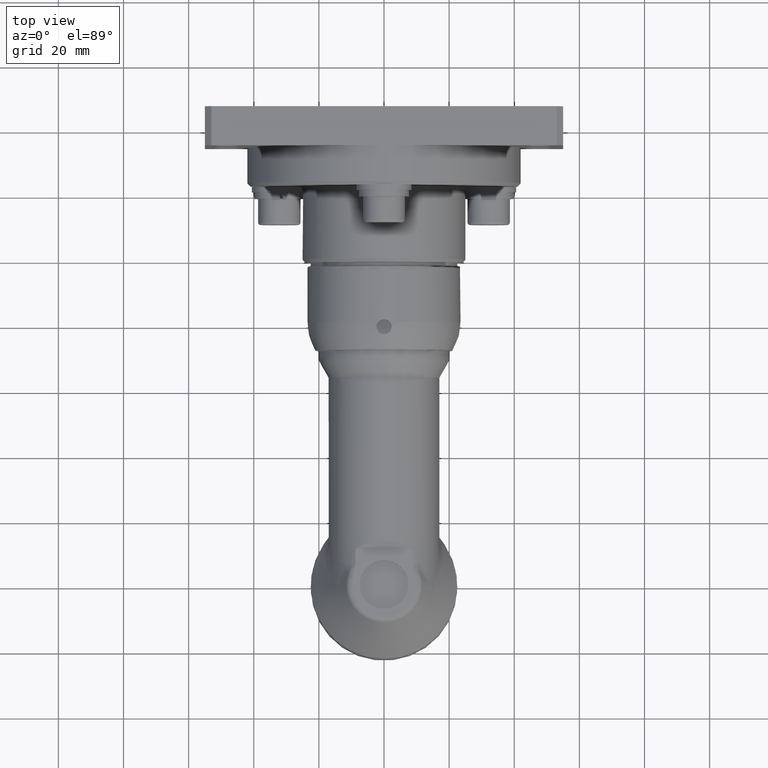
[diagram: clean part render]
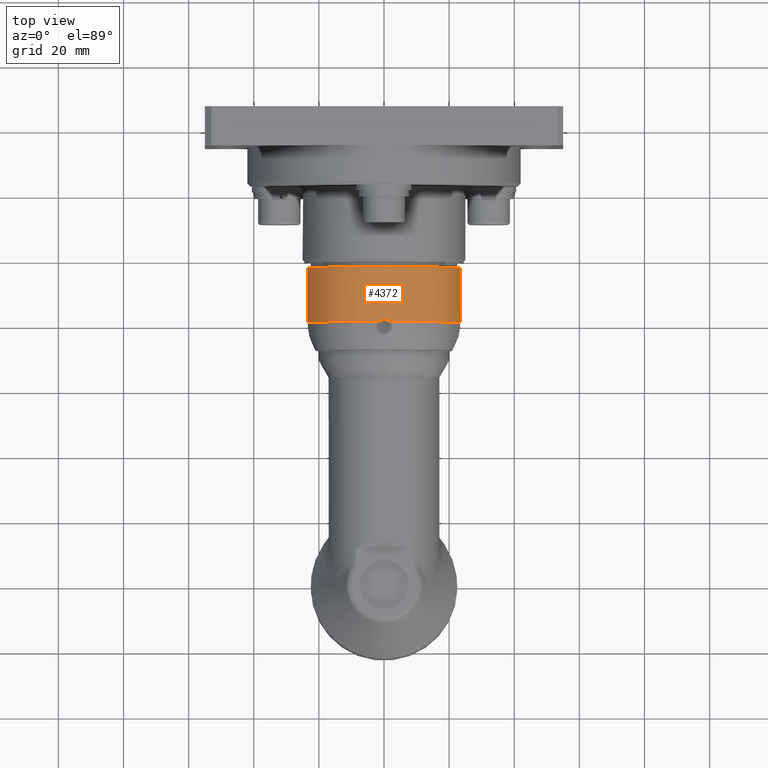
[diagram: same view with one face highlighted and labeled with its STEP entity id]
A machine part, top view. The second image highlights one B-rep face of the part: STEP entity #4372.
In plain terms, the highlighted cylindrical surface (bore or boss wall) has radius 23.5 mm, axis along (0, 1, -0).
Its self-contained STEP definition (entity closure, byte-faithful):
#75=B_SPLINE_CURVE_WITH_KNOTS('',3,(#6801,#6802,#6803,#6804,#6805,#6806),
 .UNSPECIFIED.,.F.,.F.,(4,2,4),(-0.346790081006187,-0.260092696087759,-0.182050218631956),
 .UNSPECIFIED.);
#76=B_SPLINE_CURVE_WITH_KNOTS('',3,(#6808,#6809,#6810,#6811,#6812,#6813),
 .UNSPECIFIED.,.F.,.F.,(4,2,4),(-0.511529943380419,-0.433487465924616,-0.346790081006187),
 .UNSPECIFIED.);
#79=B_SPLINE_CURVE_WITH_KNOTS('',3,(#6866,#6867,#6868,#6869,#6870,#6871),
 .UNSPECIFIED.,.F.,.F.,(4,2,4),(-0.346790081006187,-0.260092696087759,-0.182050218631957),
 .UNSPECIFIED.);
#80=B_SPLINE_CURVE_WITH_KNOTS('',3,(#6873,#6874,#6875,#6876,#6877,#6878),
 .UNSPECIFIED.,.F.,.F.,(4,2,4),(-0.511529943380418,-0.433487465924616,-0.346790081006187),
 .UNSPECIFIED.);
#84=B_SPLINE_CURVE_WITH_KNOTS('',3,(#6921,#6922,#6923,#6924,#6925,#6926),
 .UNSPECIFIED.,.F.,.F.,(4,2,4),(-0.346790081006187,-0.260092696087759,-0.182050218631957),
 .UNSPECIFIED.);
#85=B_SPLINE_CURVE_WITH_KNOTS('',3,(#6928,#6929,#6930,#6931,#6932,#6933),
 .UNSPECIFIED.,.F.,.F.,(4,2,4),(-0.511529943380418,-0.433487465924616,-0.346790081006187),
 .UNSPECIFIED.);
#88=B_SPLINE_CURVE_WITH_KNOTS('',3,(#6971,#6972,#6973,#6974,#6975,#6976),
 .UNSPECIFIED.,.F.,.F.,(4,2,4),(-0.346790081006188,-0.260092696087759,-0.182050218631957),
 .UNSPECIFIED.);
#89=B_SPLINE_CURVE_WITH_KNOTS('',3,(#6978,#6979,#6980,#6981,#6982,#6983),
 .UNSPECIFIED.,.F.,.F.,(4,2,4),(-0.511529943380418,-0.433487465924616,-0.346790081006188),
 .UNSPECIFIED.);
#182=LINE('',#7079,#395);
#395=VECTOR('',#5374,23.5);
#606=CYLINDRICAL_SURFACE('',#4682,23.5);
#756=FACE_OUTER_BOUND('',#1013,.T.);
#1013=EDGE_LOOP('',(#2940,#2941,#2942,#2943,#2944,#2945,#2946,#2947,#2948,
#2949,#2950,#2951,#2952,#2953,#2954,#2955,#2956));
#1322=CIRCLE('',#4664,23.5);
#1323=CIRCLE('',#4665,23.5);
#1324=CIRCLE('',#4666,23.5);
#1325=CIRCLE('',#4667,23.5);
#1336=CIRCLE('',#4683,23.5);
#1337=CIRCLE('',#4684,23.5);
#1338=CIRCLE('',#4685,23.5);
#1687=VERTEX_POINT('',#6790);
#1689=VERTEX_POINT('',#6800);
#1690=VERTEX_POINT('',#6807);
#1697=VERTEX_POINT('',#6855);
#1699=VERTEX_POINT('',#6865);
#1700=VERTEX_POINT('',#6872);
#1702=VERTEX_POINT('',#6910);
#1704=VERTEX_POINT('',#6920);
#1705=VERTEX_POINT('',#6927);
#1706=VERTEX_POINT('',#6960);
#1708=VERTEX_POINT('',#6970);
#1709=VERTEX_POINT('',#6977);
#1722=VERTEX_POINT('',#7074);
#1723=VERTEX_POINT('',#7075);
#1724=VERTEX_POINT('',#7077);
#2159=EDGE_CURVE('',#1689,#1687,#75,.T.);
#2160=EDGE_CURVE('',#1690,#1689,#76,.T.);
#2170=EDGE_CURVE('',#1699,#1697,#79,.T.);
#2171=EDGE_CURVE('',#1700,#1699,#80,.T.);
#2176=EDGE_CURVE('',#1704,#1702,#84,.T.);
#2177=EDGE_CURVE('',#1705,#1704,#85,.T.);
#2181=EDGE_CURVE('',#1708,#1706,#88,.T.);
#2182=EDGE_CURVE('',#1709,#1708,#89,.T.);
#2189=EDGE_CURVE('',#1700,#1687,#1322,.T.);
#2190=EDGE_CURVE('',#1690,#1702,#1323,.T.);
#2191=EDGE_CURVE('',#1705,#1706,#1324,.T.);
#2192=EDGE_CURVE('',#1709,#1697,#1325,.T.);
#2204=EDGE_CURVE('',#1722,#1723,#1336,.T.);
#2205=EDGE_CURVE('',#1724,#1722,#1337,.T.);
#2206=EDGE_CURVE('',#1724,#1708,#182,.T.);
#2207=EDGE_CURVE('',#1723,#1724,#1338,.T.);
#2940=ORIENTED_EDGE('',*,*,#2204,.F.);
#2941=ORIENTED_EDGE('',*,*,#2205,.F.);
#2942=ORIENTED_EDGE('',*,*,#2206,.T.);
#2943=ORIENTED_EDGE('',*,*,#2181,.T.);
#2944=ORIENTED_EDGE('',*,*,#2191,.F.);
#2945=ORIENTED_EDGE('',*,*,#2177,.T.);
#2946=ORIENTED_EDGE('',*,*,#2176,.T.);
#2947=ORIENTED_EDGE('',*,*,#2190,.F.);
#2948=ORIENTED_EDGE('',*,*,#2160,.T.);
#2949=ORIENTED_EDGE('',*,*,#2159,.T.);
#2950=ORIENTED_EDGE('',*,*,#2189,.F.);
#2951=ORIENTED_EDGE('',*,*,#2171,.T.);
#2952=ORIENTED_EDGE('',*,*,#2170,.T.);
#2953=ORIENTED_EDGE('',*,*,#2192,.F.);
#2954=ORIENTED_EDGE('',*,*,#2182,.T.);
#2955=ORIENTED_EDGE('',*,*,#2206,.F.);
#2956=ORIENTED_EDGE('',*,*,#2207,.F.);
#4372=ADVANCED_FACE('',(#756),#606,.T.);
#4664=AXIS2_PLACEMENT_3D('',#7045,#5331,#5332);
#4665=AXIS2_PLACEMENT_3D('',#7046,#5333,#5334);
#4666=AXIS2_PLACEMENT_3D('',#7047,#5335,#5336);
#4667=AXIS2_PLACEMENT_3D('',#7048,#5337,#5338);
#4682=AXIS2_PLACEMENT_3D('',#7073,#5368,#5369);
#4683=AXIS2_PLACEMENT_3D('',#7076,#5370,#5371);
#4684=AXIS2_PLACEMENT_3D('',#7078,#5372,#5373);
#4685=AXIS2_PLACEMENT_3D('',#7080,#5375,#5376);
#5331=DIRECTION('center_axis',(-3.24337863054652E-16,-1.,1.12588526286337E-18));
#5332=DIRECTION('ref_axis',(0.707106781186549,-2.35645247144205E-16,-0.707106781186546));
#5333=DIRECTION('center_axis',(-3.24337863054652E-16,-1.,1.12588526286337E-18));
#5334=DIRECTION('ref_axis',(0.707106781186549,-2.35645247144205E-16,-0.707106781186546));
#5335=DIRECTION('center_axis',(-3.24337863054652E-16,-1.,1.12588526286337E-18));
#5336=DIRECTION('ref_axis',(0.707106781186549,-2.35645247144205E-16,-0.707106781186546));
#5337=DIRECTION('center_axis',(-3.24337863054652E-16,-1.,1.12588526286337E-18));
#5338=DIRECTION('ref_axis',(0.707106781186549,-2.35645247144205E-16,-0.707106781186546));
#5368=DIRECTION('center_axis',(3.24337863054652E-16,1.,-1.12588526286337E-18));
#5369=DIRECTION('ref_axis',(1.96730036446087E-15,1.24710048735304E-16,-1.));
#5370=DIRECTION('center_axis',(3.24337863054652E-16,1.,-1.12588526286337E-18));
#5371=DIRECTION('ref_axis',(-2.02853270441824E-15,2.2569461021477E-18,1.));
#5372=DIRECTION('center_axis',(3.24337863054652E-16,1.,-1.12588526286337E-18));
#5373=DIRECTION('ref_axis',(-2.02853270441824E-15,2.2569461021477E-18,1.));
#5374=DIRECTION('',(-3.24337863054652E-16,-1.,1.12588526286337E-18));
#5375=DIRECTION('center_axis',(3.24337863054652E-16,1.,-1.12588526286337E-18));
#5376=DIRECTION('ref_axis',(-2.02853270441824E-15,2.2569461021477E-18,1.));
#6790=CARTESIAN_POINT('',(-1.5636771259462,80.6866872404905,-23.4479191794453));
#6800=CARTESIAN_POINT('',(3.58613428758053E-14,81.2999999999998,-23.5000000000002));
#6801=CARTESIAN_POINT('Ctrl Pts',(3.61516372393567E-14,81.2999999999998,
-23.5000000000002));
#6802=CARTESIAN_POINT('Ctrl Pts',(-0.288991283061391,81.2999999999998,-23.5000000000002));
#6803=CARTESIAN_POINT('Ctrl Pts',(-0.597119438070612,81.2422071708592,-23.4941232068967));
#6804=CARTESIAN_POINT('Ctrl Pts',(-1.13545525787972,81.0191449802078,-23.4739402612097));
#6805=CARTESIAN_POINT('Ctrl Pts',(-1.37072982928054,80.8655628887706,-23.4607863030463));
#6806=CARTESIAN_POINT('Ctrl Pts',(-1.56367712573367,80.6866872402601,-23.4479191794595));
#6807=CARTESIAN_POINT('',(1.56367712594627,80.6866872404905,-23.4479191794453));
#6808=CARTESIAN_POINT('Ctrl Pts',(1.56367712573373,80.6866872402602,-23.4479191794595));
#6809=CARTESIAN_POINT('Ctrl Pts',(1.3707298292806,80.8655628887706,-23.4607863030463));
#6810=CARTESIAN_POINT('Ctrl Pts',(1.13545525787979,81.0191449802078,-23.4739402612097));
#6811=CARTESIAN_POINT('Ctrl Pts',(0.597119438070684,81.2422071708592,-23.4941232068967));
#6812=CARTESIAN_POINT('Ctrl Pts',(0.288991283061464,81.2999999999998,-23.5000000000002));
#6813=CARTESIAN_POINT('Ctrl Pts',(3.61516372393567E-14,81.2999999999998,
-23.5000000000002));
#6855=CARTESIAN_POINT('',(-23.4479191794452,80.6866872404905,1.56367712594605));
#6865=CARTESIAN_POINT('',(-23.5,81.2999999999998,-1.87253343254214E-13));
#6866=CARTESIAN_POINT('Ctrl Pts',(-23.5,81.2999999999998,-1.85754189807597E-13));
#6867=CARTESIAN_POINT('Ctrl Pts',(-23.5,81.2999999999998,0.288991283061241));
#6868=CARTESIAN_POINT('Ctrl Pts',(-23.4941232068965,81.2422071708592,0.597119438070461));
#6869=CARTESIAN_POINT('Ctrl Pts',(-23.4739402612096,81.0191449802078,1.13545525787957));
#6870=CARTESIAN_POINT('Ctrl Pts',(-23.4607863030462,80.8655628887706,1.37072982928038));
#6871=CARTESIAN_POINT('Ctrl Pts',(-23.4479191794594,80.6866872402602,1.56367712573351));
#6872=CARTESIAN_POINT('',(-23.4479191794452,80.6866872404905,-1.56367712594642));
#6873=CARTESIAN_POINT('Ctrl Pts',(-23.4479191794594,80.6866872402602,-1.56367712573389));
#6874=CARTESIAN_POINT('Ctrl Pts',(-23.4607863030462,80.8655628887706,-1.37072982928076));
#6875=CARTESIAN_POINT('Ctrl Pts',(-23.4739402612095,81.0191449802078,-1.13545525787994));
#6876=CARTESIAN_POINT('Ctrl Pts',(-23.4941232068965,81.2422071708592,-0.597119438070834));
#6877=CARTESIAN_POINT('Ctrl Pts',(-23.5,81.2999999999998,-0.288991283061614));
#6878=CARTESIAN_POINT('Ctrl Pts',(-23.5,81.2999999999998,-1.86621551545585E-13));
#6910=CARTESIAN_POINT('',(23.4479191794452,80.6866872404904,-1.56367712594634));
#6920=CARTESIAN_POINT('',(23.5,81.2999999999998,-1.00546066080545E-13));
#6921=CARTESIAN_POINT('Ctrl Pts',(23.5,81.2999999999998,-9.90180160087561E-14));
#6922=CARTESIAN_POINT('Ctrl Pts',(23.5,81.2999999999998,-0.288991283061527));
#6923=CARTESIAN_POINT('Ctrl Pts',(23.4941232068965,81.2422071708592,-0.597119438070747));
#6924=CARTESIAN_POINT('Ctrl Pts',(23.4739402612095,81.0191449802078,-1.13545525787986));
#6925=CARTESIAN_POINT('Ctrl Pts',(23.4607863030462,80.8655628887706,-1.37072982928067));
#6926=CARTESIAN_POINT('Ctrl Pts',(23.4479191794593,80.6866872402601,-1.5636771257338));
#6927=CARTESIAN_POINT('',(23.4479191794452,80.6866872404904,1.56367712594614));
#6928=CARTESIAN_POINT('Ctrl Pts',(23.4479191794593,80.6866872402602,1.5636771257336));
#6929=CARTESIAN_POINT('Ctrl Pts',(23.4607863030462,80.8655628887706,1.37072982928047));
#6930=CARTESIAN_POINT('Ctrl Pts',(23.4739402612095,81.0191449802078,1.13545525787966));
#6931=CARTESIAN_POINT('Ctrl Pts',(23.4941232068965,81.2422071708592,0.597119438070549));
#6932=CARTESIAN_POINT('Ctrl Pts',(23.5,81.2999999999998,0.288991283061328));
#6933=CARTESIAN_POINT('Ctrl Pts',(23.5,81.2999999999998,-9.89139326001975E-14));
#6960=CARTESIAN_POINT('',(1.56367712594618,80.6866872404905,23.447919179445));
#6970=CARTESIAN_POINT('',(-5.37238542758593E-14,81.2999999999998,23.4999999999999));
#6971=CARTESIAN_POINT('Ctrl Pts',(-5.40539835114373E-14,81.2999999999998,
23.4999999999999));
#6972=CARTESIAN_POINT('Ctrl Pts',(0.288991283061373,81.2999999999998,23.4999999999999));
#6973=CARTESIAN_POINT('Ctrl Pts',(0.597119438070595,81.2422071708592,23.4941232068964));
#6974=CARTESIAN_POINT('Ctrl Pts',(1.1354552578797,81.0191449802078,23.4739402612094));
#6975=CARTESIAN_POINT('Ctrl Pts',(1.37072982928052,80.8655628887706,23.460786303046));
#6976=CARTESIAN_POINT('Ctrl Pts',(1.56367712573364,80.6866872402602,23.4479191794592));
#6977=CARTESIAN_POINT('',(-1.56367712594629,80.6866872404905,23.447919179445));
#6978=CARTESIAN_POINT('Ctrl Pts',(-1.56367712573375,80.6866872402602,23.4479191794592));
#6979=CARTESIAN_POINT('Ctrl Pts',(-1.37072982928062,80.8655628887706,23.460786303046));
#6980=CARTESIAN_POINT('Ctrl Pts',(-1.13545525787981,81.0191449802078,23.4739402612094));
#6981=CARTESIAN_POINT('Ctrl Pts',(-0.597119438070702,81.2422071708592,23.4941232068964));
#6982=CARTESIAN_POINT('Ctrl Pts',(-0.288991283061482,81.2999999999998,23.4999999999999));
#6983=CARTESIAN_POINT('Ctrl Pts',(-5.42621503285545E-14,81.2999999999998,
23.4999999999999));
#7045=CARTESIAN_POINT('Origin',(-1.05691362386899E-14,80.6866872409178,
-1.45337974136581E-13));
#7046=CARTESIAN_POINT('Origin',(-1.05691362386899E-14,80.6866872409178,
-1.45337974136581E-13));
#7047=CARTESIAN_POINT('Origin',(-1.05691362386899E-14,80.6866872409178,
-1.45337974136581E-13));
#7048=CARTESIAN_POINT('Origin',(-1.05691362386899E-14,80.6866872409178,
-1.45337974136581E-13));
#7073=CARTESIAN_POINT('Origin',(-8.30073460584295E-15,87.6806336506367,
-1.45345848517773E-13));
#7074=CARTESIAN_POINT('',(3.96766562682925E-14,97.4999999999998,-23.5000000000002));
#7075=CARTESIAN_POINT('',(-23.5,97.4999999999998,-1.8871054258447E-13));
#7076=CARTESIAN_POINT('Origin',(-5.11594230753978E-15,97.4999999999998,
-1.45356903997636E-13));
#7077=CARTESIAN_POINT('',(-4.84695808943739E-14,97.4999999999998,23.4999999999999));
#7078=CARTESIAN_POINT('Origin',(-5.11594230753978E-15,97.4999999999998,
-1.45356903997636E-13));
#7079=CARTESIAN_POINT('',(-5.16543731926771E-14,87.6806336506367,23.4999999999999));
#7080=CARTESIAN_POINT('Origin',(-5.11594230753978E-15,97.4999999999998,
-1.45356903997636E-13));